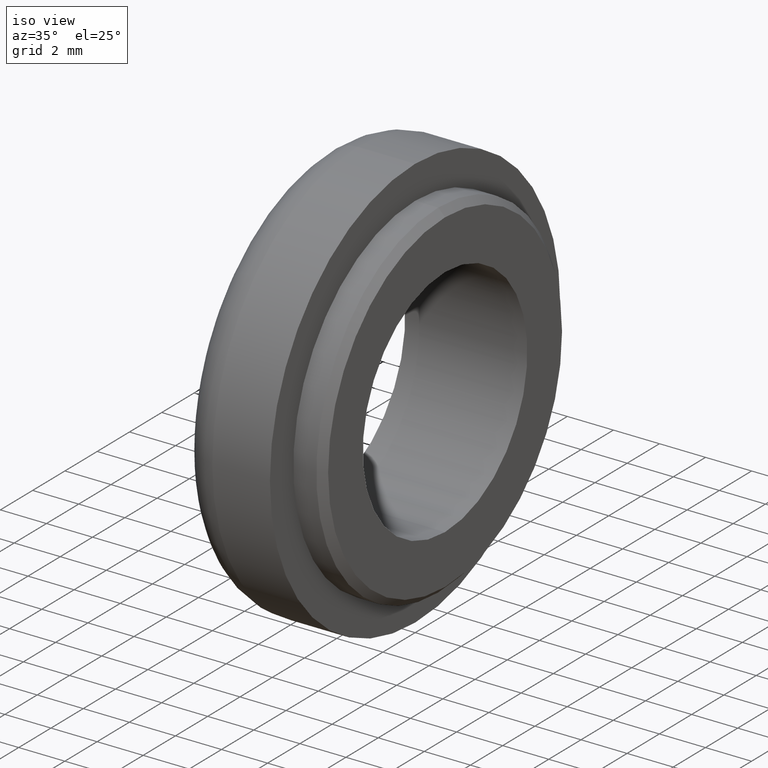
[diagram: clean part render]
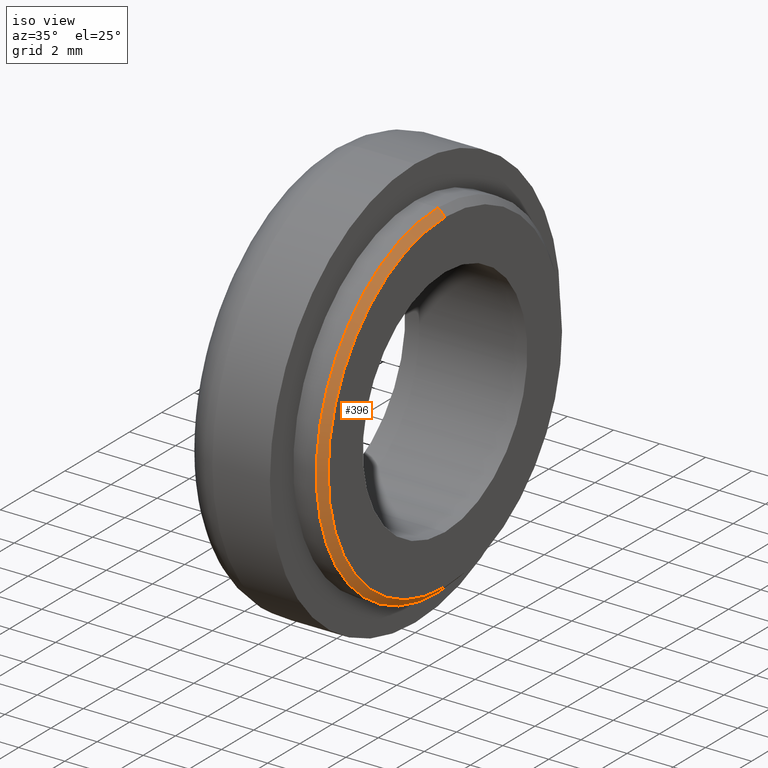
[diagram: same view with one face highlighted and labeled with its STEP entity id]
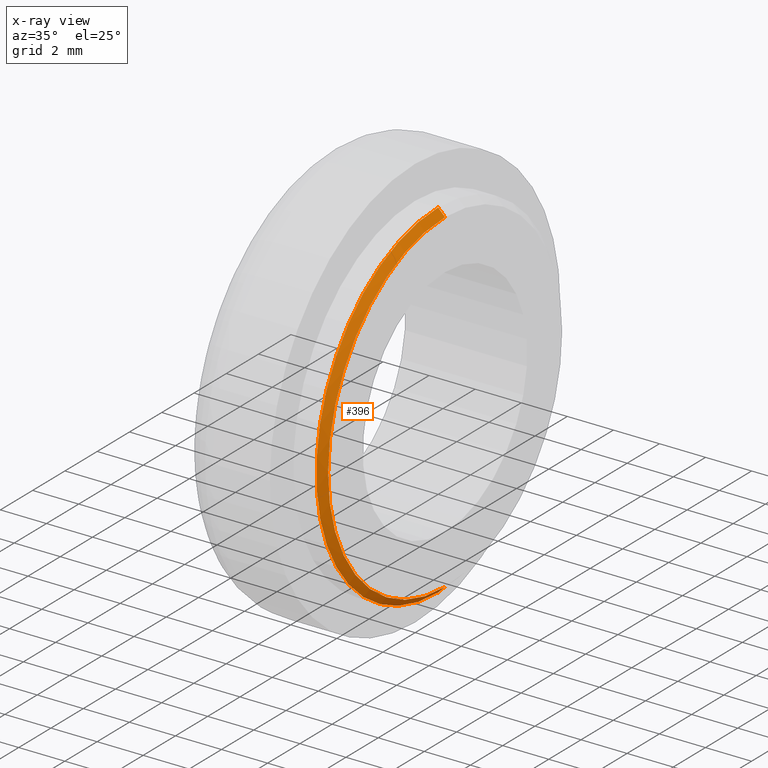
[diagram: x-ray of the same camera — body ghosted, the highlighted face saturated]
A machine part, iso view. The second image highlights one B-rep face of the part: STEP entity #396.
The next image is the same camera in x-ray: the body ghosted, the highlighted face saturated — about 0% of this face is hidden behind the body in this view.
In plain terms, the highlighted conical surface has half-angle 45 deg.
Its self-contained STEP definition (entity closure, byte-faithful):
#1 = DIRECTION ( 'NONE',  ( -1.000000000000000000, -0.0000000000000000000, -0.0000000000000000000 ) ) ;
#9 = CIRCLE ( 'NONE', #10, 7.549999999999999800 ) ;
#10 = AXIS2_PLACEMENT_3D ( 'NONE', #534, #194, #658 ) ;
#13 = ORIENTED_EDGE ( 'NONE', *, *, #390, .T. ) ;
#56 = CONICAL_SURFACE ( 'NONE', #132, 7.250000000000000000, 0.7853981633974555000 ) ;
#80 = CIRCLE ( 'NONE', #495, 7.250000000000000000 ) ;
#113 = CARTESIAN_POINT ( 'NONE',  ( 3.500000000000003100, 9.246083333562514700E-016, -7.549999999999999800 ) ) ;
#121 = CARTESIAN_POINT ( 'NONE',  ( 3.799999999999998000, 0.0000000000000000000, 0.0000000000000000000 ) ) ;
#132 = AXIS2_PLACEMENT_3D ( 'NONE', #121, #1, #326 ) ;
#180 = CARTESIAN_POINT ( 'NONE',  ( 3.799999999999998000, 0.0000000000000000000, 7.250000000000000000 ) ) ;
#183 = CARTESIAN_POINT ( 'NONE',  ( 3.500000000000003100, 0.0000000000000000000, 7.549999999999999800 ) ) ;
#191 = CARTESIAN_POINT ( 'NONE',  ( 3.799999999999998000, 0.0000000000000000000, 0.0000000000000000000 ) ) ;
#194 = DIRECTION ( 'NONE',  ( -1.000000000000000000, -0.0000000000000000000, -0.0000000000000000000 ) ) ;
#200 = DIRECTION ( 'NONE',  ( -0.7071067811865424700, 0.0000000000000000000, 0.7071067811865526800 ) ) ;
#217 = DIRECTION ( 'NONE',  ( -1.000000000000000000, -0.0000000000000000000, -0.0000000000000000000 ) ) ;
#237 = ORIENTED_EDGE ( 'NONE', *, *, #242, .F. ) ;
#242 = EDGE_CURVE ( 'NONE', #499, #640, #330, .T. ) ;
#259 = ORIENTED_EDGE ( 'NONE', *, *, #314, .T. ) ;
#261 = CARTESIAN_POINT ( 'NONE',  ( 3.799999999999998000, 9.062386313690412400E-016, -7.250000000000000000 ) ) ;
#304 = DIRECTION ( 'NONE',  ( -0.7071067811865424700, 8.659560562354995700E-017, -0.7071067811865526800 ) ) ;
#308 = CARTESIAN_POINT ( 'NONE',  ( 3.799999999999998000, 8.878689293818310100E-016, -7.250000000000000000 ) ) ;
#314 = EDGE_CURVE ( 'NONE', #499, #581, #80, .T. ) ;
#326 = DIRECTION ( 'NONE',  ( 0.0000000000000000000, 0.0000000000000000000, 1.000000000000000000 ) ) ;
#330 = LINE ( 'NONE', #308, #435 ) ;
#390 = EDGE_CURVE ( 'NONE', #581, #657, #553, .T. ) ;
#396 = ADVANCED_FACE ( 'NONE', ( #484 ), #56, .T. ) ;
#435 = VECTOR ( 'NONE', #304, 1000.000000000000000 ) ;
#438 = EDGE_LOOP ( 'NONE', ( #237, #259, #13, #711 ) ) ;
#484 = FACE_OUTER_BOUND ( 'NONE', #438, .T. ) ;
#495 = AXIS2_PLACEMENT_3D ( 'NONE', #191, #217, #511 ) ;
#499 = VERTEX_POINT ( 'NONE', #261 ) ;
#511 = DIRECTION ( 'NONE',  ( 0.0000000000000000000, 0.0000000000000000000, 1.000000000000000000 ) ) ;
#534 = CARTESIAN_POINT ( 'NONE',  ( 3.500000000000003100, 0.0000000000000000000, 0.0000000000000000000 ) ) ;
#553 = LINE ( 'NONE', #720, #662 ) ;
#581 = VERTEX_POINT ( 'NONE', #180 ) ;
#640 = VERTEX_POINT ( 'NONE', #113 ) ;
#657 = VERTEX_POINT ( 'NONE', #183 ) ;
#658 = DIRECTION ( 'NONE',  ( 0.0000000000000000000, 0.0000000000000000000, 1.000000000000000000 ) ) ;
#662 = VECTOR ( 'NONE', #200, 1000.000000000000000 ) ;
#696 = EDGE_CURVE ( 'NONE', #640, #657, #9, .T. ) ;
#711 = ORIENTED_EDGE ( 'NONE', *, *, #696, .F. ) ;
#720 = CARTESIAN_POINT ( 'NONE',  ( 3.799999999999998000, 0.0000000000000000000, 7.250000000000000000 ) ) ;